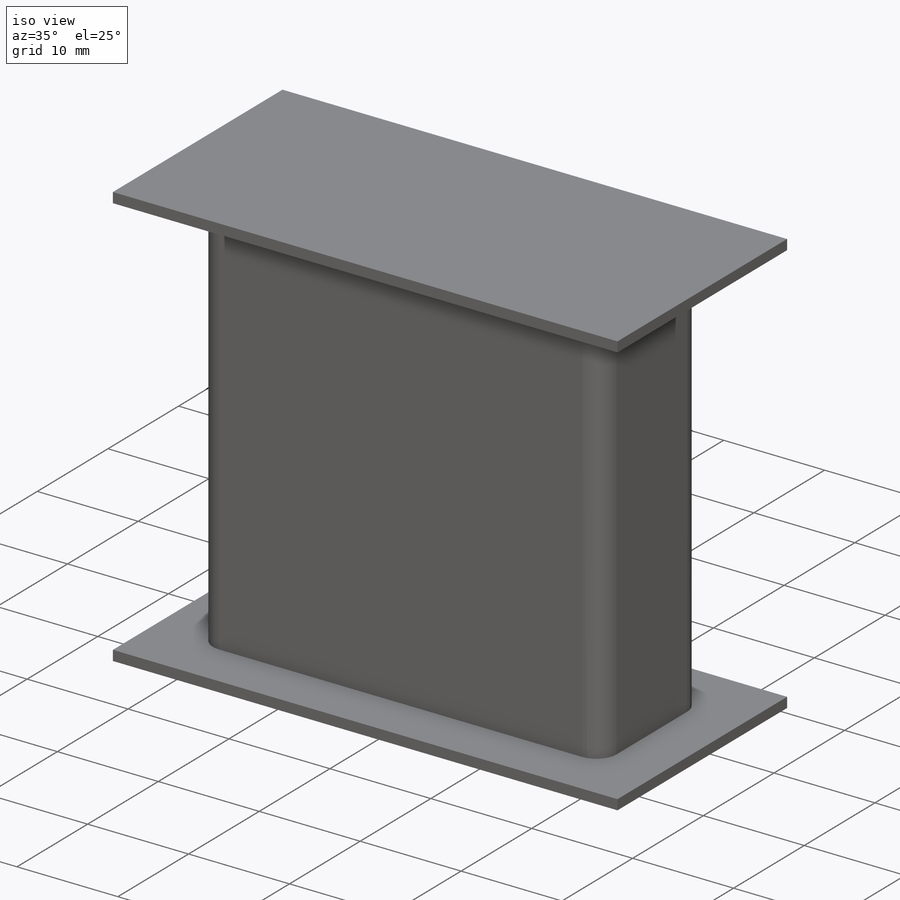
[diagram: iso view]
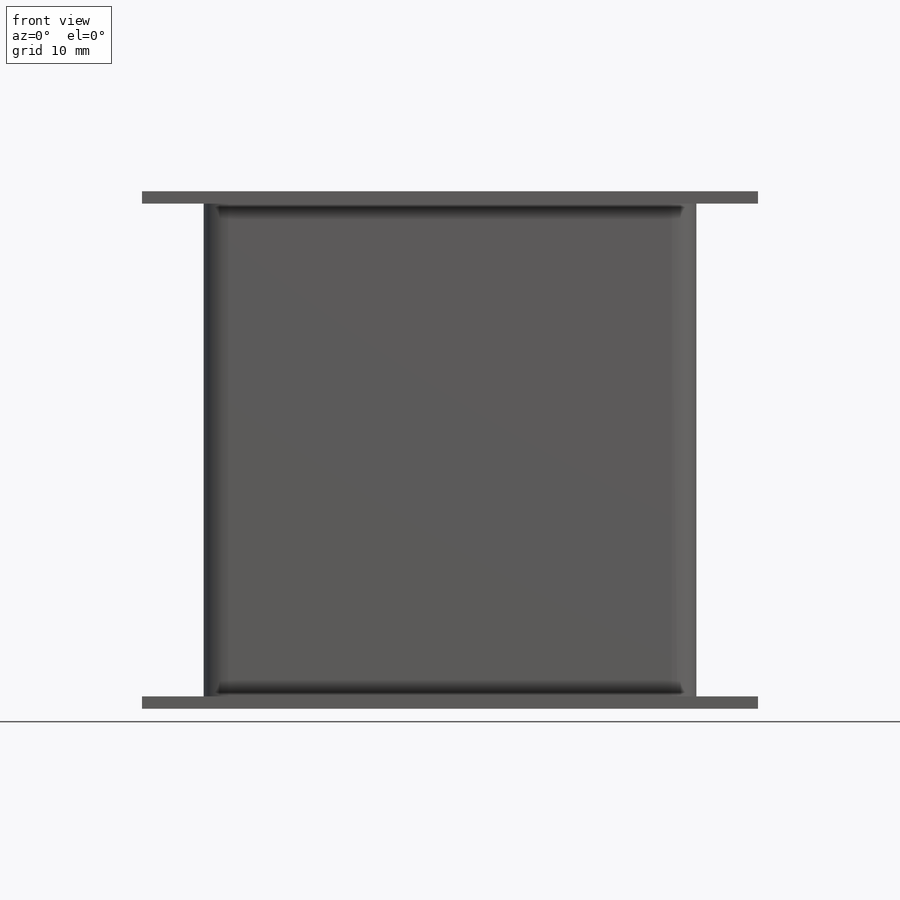
[diagram: front view]
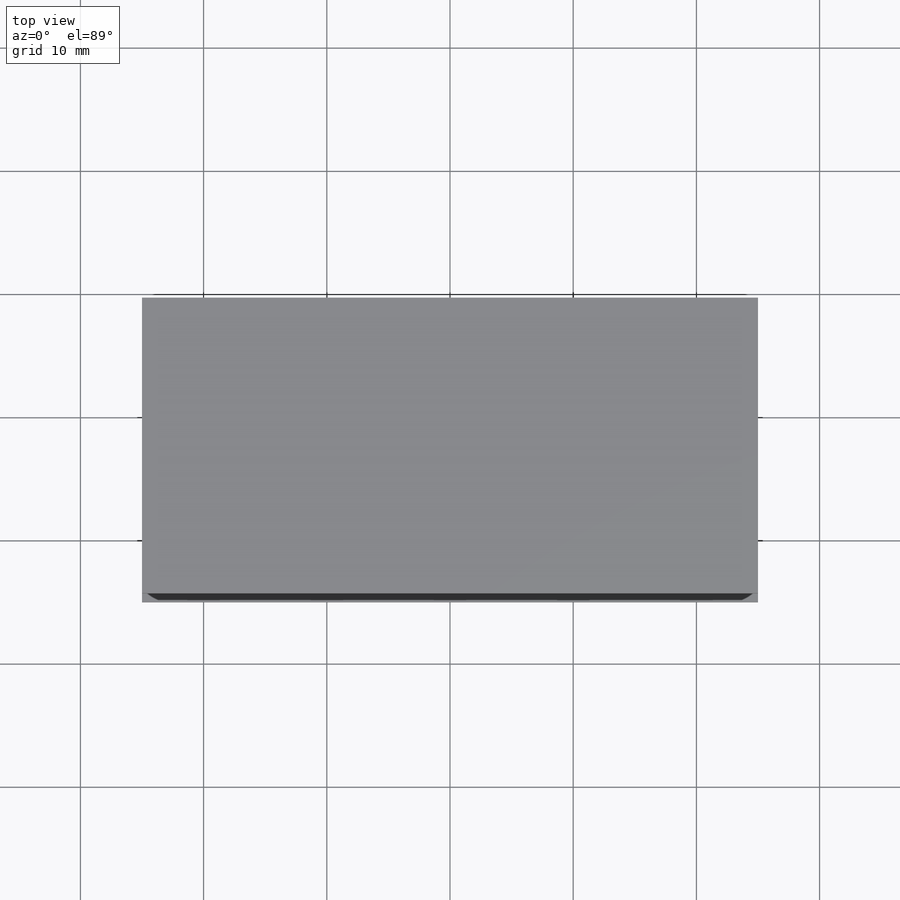
[diagram: top view]
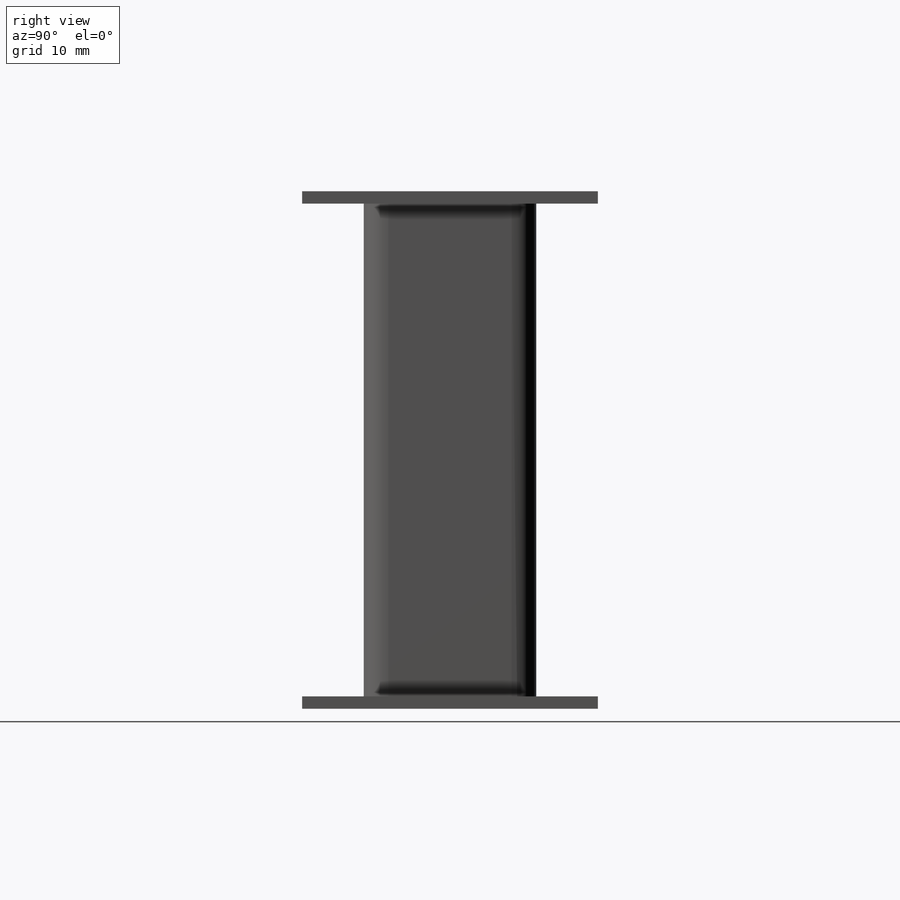
[diagram: right view]
SOLIDWORKS PART (.sldprt)
format: sldprt  version: not decoded by parser v0  size: 285,696 bytes
history: native  units: mm
features: sketch x6, plane x4, extrude x3, cut_extrude x3, material x1 (+10 scaffold rows collapsed)
feature tree (27):
  scaffold x10  (default folders/planes/origin — collapsed)
  material  "材质 <未指定>"
  plane  "前视基准面"
  plane  "上视基准面"
  plane  "右视基准面"
  sketch  "草图1"
  extrude  "凸台-拉伸1"  Depth=40mm
  sketch  "草图6"
  cut_extrude  "切除-拉伸2"  [1 undecoded]
  sketch  "草图15"  dims[D1=2.0mm]
  cut_extrude  "切除-拉伸5"  [1 undecoded]
  sketch  "草图16"
  extrude  "凸台-拉伸2"  Depth=1mm
  sketch  "草图17"
  extrude  "凸台-拉伸3"  Depth=1mm
  sketch  "草图18"
  cut_extrude  "切除-拉伸6"  Depth=1mm
  plane  "基准面1"
decode coverage: 5 of 12 modeling features carry decoded parameters
note: 2 parameter values undecoded
note: suppression state not decoded; provenance and decode notes live in map.json
